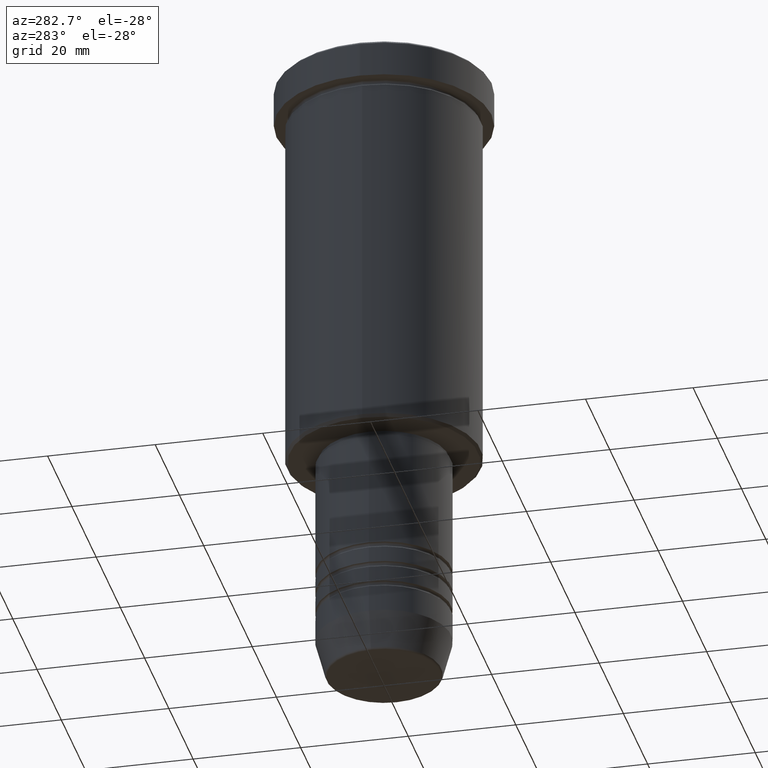
[diagram: clean part render]
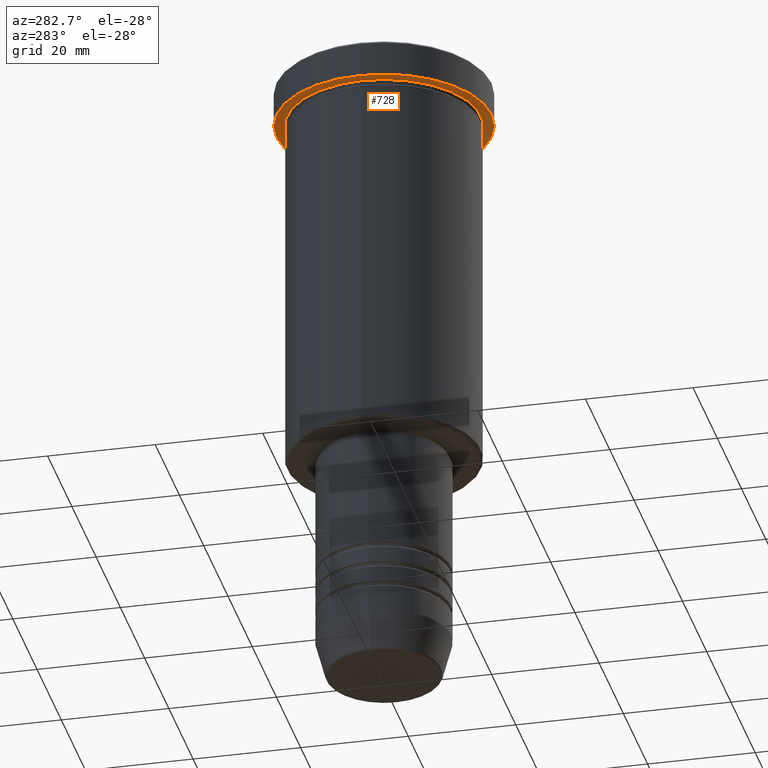
[diagram: same view with one face highlighted and labeled with its STEP entity id]
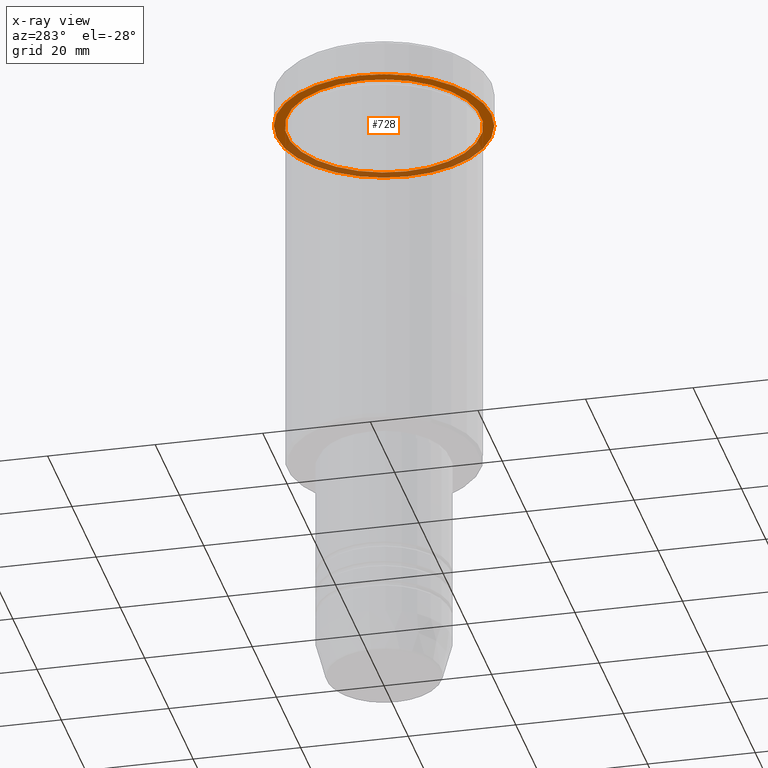
[diagram: x-ray of the same camera — body ghosted, the highlighted face saturated]
A machine part, auxiliary view. The second image highlights one B-rep face of the part: STEP entity #728.
The next image is the same camera in x-ray: the body ghosted, the highlighted face saturated — about 37% of this face is hidden behind the body in this view.
In plain terms, the highlighted planar face has unit normal (0, 0, -1).
Its self-contained STEP definition (entity closure, byte-faithful):
#42 = FACE_OUTER_BOUND ( 'NONE', #758, .T. ) ;
#61 = EDGE_CURVE ( 'NONE', #651, #359, #151, .T. ) ;
#64 = CARTESIAN_POINT ( 'NONE',  ( 0.000000000000000000, 0.000000000000000000, -6.999999999999995559 ) ) ;
#69 = DIRECTION ( 'NONE',  ( -0.000000000000000000, -0.000000000000000000, 1.000000000000000000 ) ) ;
#79 = DIRECTION ( 'NONE',  ( 1.000000000000000000, 0.000000000000000000, 0.000000000000000000 ) ) ;
#142 = DIRECTION ( 'NONE',  ( -1.000000000000000000, 0.000000000000000000, -0.000000000000000000 ) ) ;
#151 = CIRCLE ( 'NONE', #552, 20.00000000000000000 ) ;
#162 = CARTESIAN_POINT ( 'NONE',  ( 0.000000000000000000, 0.000000000000000000, -6.999999999999995559 ) ) ;
#178 = DIRECTION ( 'NONE',  ( -0.000000000000000000, -0.000000000000000000, 1.000000000000000000 ) ) ;
#201 = DIRECTION ( 'NONE',  ( -1.000000000000000000, 0.000000000000000000, 0.000000000000000000 ) ) ;
#223 = AXIS2_PLACEMENT_3D ( 'NONE', #704, #968, #142 ) ;
#231 = VERTEX_POINT ( 'NONE', #1022 ) ;
#251 = AXIS2_PLACEMENT_3D ( 'NONE', #162, #919, #657 ) ;
#281 = CARTESIAN_POINT ( 'NONE',  ( 18.00000000000000000, 2.204364238465235428E-15, -6.999999999999995559 ) ) ;
#287 = CARTESIAN_POINT ( 'NONE',  ( 20.00000000000000000, 0.000000000000000000, -6.999999999999995559 ) ) ;
#359 = VERTEX_POINT ( 'NONE', #389 ) ;
#360 = DIRECTION ( 'NONE',  ( 1.000000000000000000, 0.000000000000000000, 0.000000000000000000 ) ) ;
#389 = CARTESIAN_POINT ( 'NONE',  ( -20.00000000000000000, 2.449293598294706513E-15, -6.999999999999995559 ) ) ;
#407 = EDGE_CURVE ( 'NONE', #1027, #231, #1159, .T. ) ;
#427 = EDGE_LOOP ( 'NONE', ( #714, #1095 ) ) ;
#457 = CARTESIAN_POINT ( 'NONE',  ( 0.000000000000000000, 0.000000000000000000, -6.999999999999995559 ) ) ;
#539 = CIRCLE ( 'NONE', #1176, 20.00000000000000000 ) ;
#552 = AXIS2_PLACEMENT_3D ( 'NONE', #64, #1077, #360 ) ;
#563 = EDGE_CURVE ( 'NONE', #359, #651, #539, .T. ) ;
#597 = AXIS2_PLACEMENT_3D ( 'NONE', #457, #69, #201 ) ;
#610 = EDGE_CURVE ( 'NONE', #231, #1027, #1084, .T. ) ;
#651 = VERTEX_POINT ( 'NONE', #287 ) ;
#657 = DIRECTION ( 'NONE',  ( -1.000000000000000000, 0.000000000000000000, 0.000000000000000000 ) ) ;
#704 = CARTESIAN_POINT ( 'NONE',  ( 0.000000000000000000, 20.00000000000000000, -6.999999999999995559 ) ) ;
#714 = ORIENTED_EDGE ( 'NONE', *, *, #610, .T. ) ;
#728 = ADVANCED_FACE ( 'NONE', ( #872, #42 ), #1141, .T. ) ;
#758 = EDGE_LOOP ( 'NONE', ( #1010, #1030 ) ) ;
#872 = FACE_BOUND ( 'NONE', #427, .T. ) ;
#919 = DIRECTION ( 'NONE',  ( -0.000000000000000000, -0.000000000000000000, 1.000000000000000000 ) ) ;
#968 = DIRECTION ( 'NONE',  ( 0.000000000000000000, 0.000000000000000000, -1.000000000000000000 ) ) ;
#1000 = CARTESIAN_POINT ( 'NONE',  ( 0.000000000000000000, 0.000000000000000000, -6.999999999999995559 ) ) ;
#1010 = ORIENTED_EDGE ( 'NONE', *, *, #61, .F. ) ;
#1022 = CARTESIAN_POINT ( 'NONE',  ( -18.00000000000000000, 0.000000000000000000, -6.999999999999995559 ) ) ;
#1027 = VERTEX_POINT ( 'NONE', #281 ) ;
#1030 = ORIENTED_EDGE ( 'NONE', *, *, #563, .F. ) ;
#1077 = DIRECTION ( 'NONE',  ( -0.000000000000000000, -0.000000000000000000, 1.000000000000000000 ) ) ;
#1084 = CIRCLE ( 'NONE', #597, 18.00000000000000000 ) ;
#1095 = ORIENTED_EDGE ( 'NONE', *, *, #407, .T. ) ;
#1141 = PLANE ( 'NONE',  #223 ) ;
#1159 = CIRCLE ( 'NONE', #251, 18.00000000000000000 ) ;
#1176 = AXIS2_PLACEMENT_3D ( 'NONE', #1000, #178, #79 ) ;